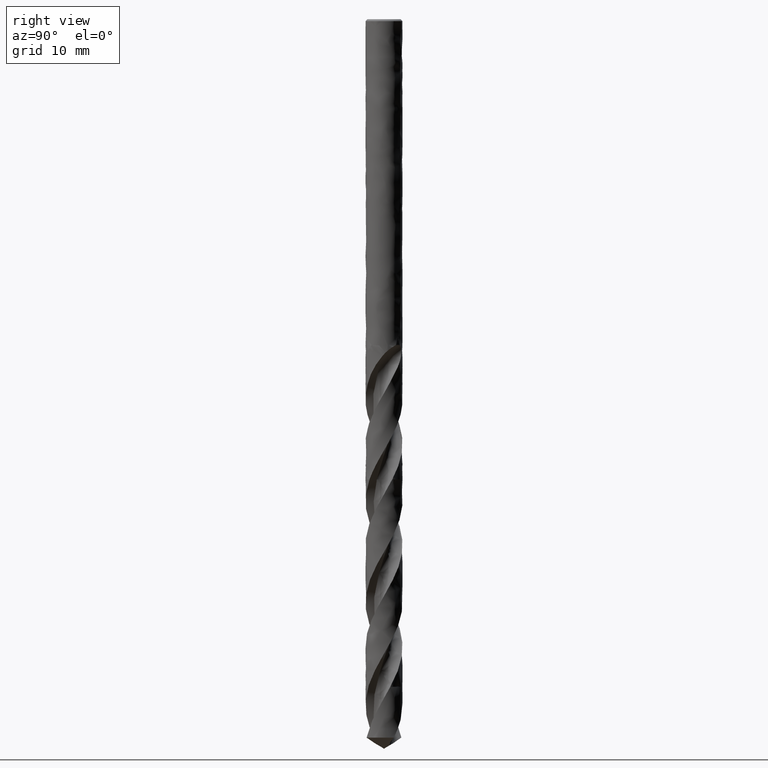
[diagram: clean part render]
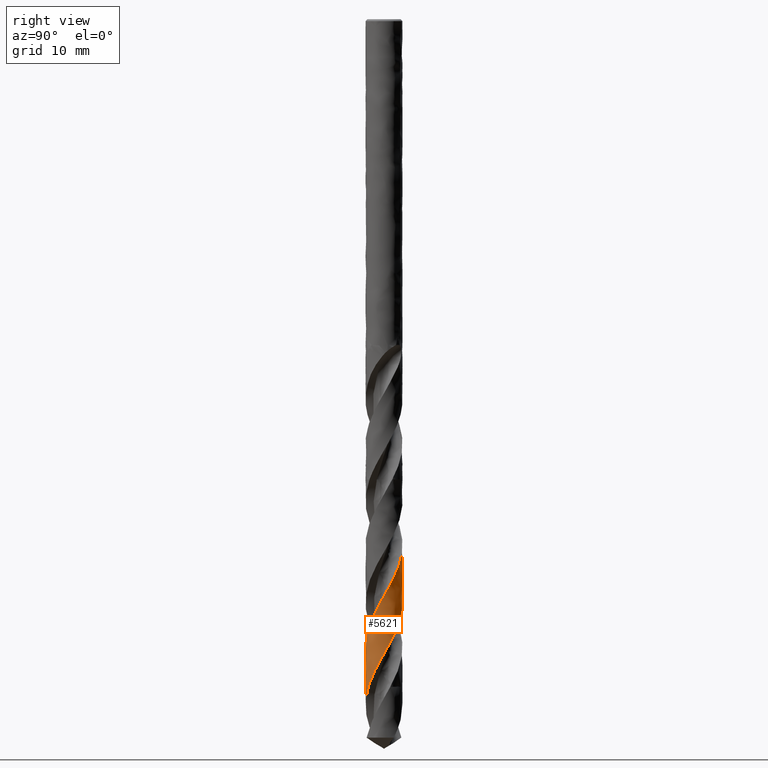
[diagram: same view with one face highlighted and labeled with its STEP entity id]
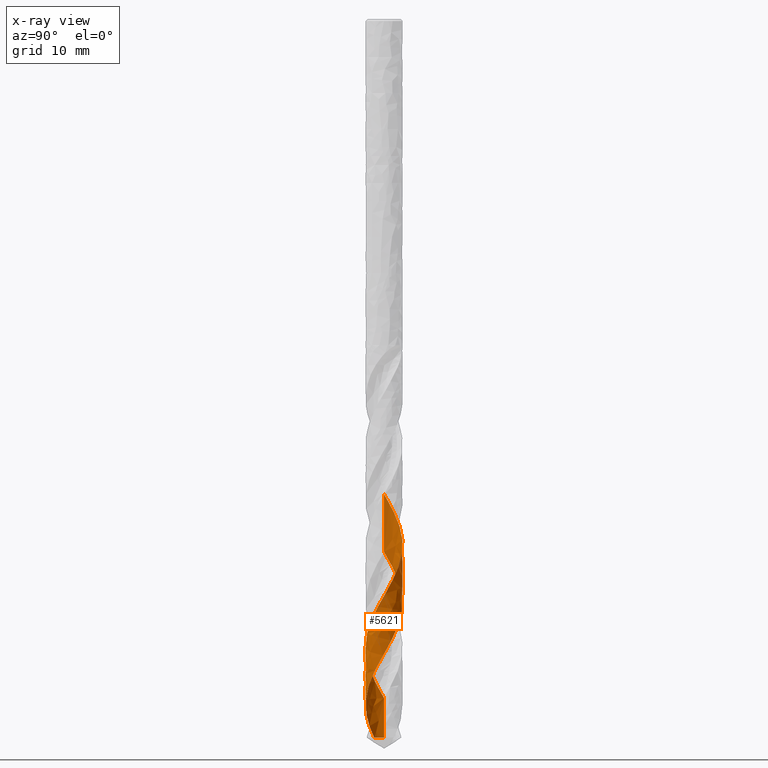
[diagram: x-ray of the same camera — body ghosted, the highlighted face saturated]
A machine part, right view. The second image highlights one B-rep face of the part: STEP entity #5621.
The next image is the same camera in x-ray: the body ghosted, the highlighted face saturated — about 0% of this face is hidden behind the body in this view.
In plain terms, the highlighted face is a freeform B-spline surface patch.
Its self-contained STEP definition (entity closure, byte-faithful):
#3791 = VERTEX_POINT('', #3792);
#3792 = CARTESIAN_POINT('', (-1.65, 3.00697224057047E-15, -47.4575833891705));
#3853 = EDGE_CURVE('', #3791, #3854, #3856, .T.);
#3854 = VERTEX_POINT('', #3855);
#3855 = CARTESIAN_POINT('', (-1.39600309556314, -0.879588174760285, -64.0085799786045));
#3856 = B_SPLINE_CURVE_WITH_KNOTS('', 3, (#3857, #3858, #3859, #3860, #3861, #3862, #3863, #3864, #3865, #3866, #3867, #3868, #3869, #3870, #3871, #3872, #3873, #3874, #3875, #3876, #3877, #3878, #3879, #3880, #3881, #3882, #3883, #3884, #3885, #3886, #3887, #3888, #3889, #3890, #3891, #3892, #3893, #3894, #3895, #3896, #3897, #3898, #3899, #3900, #3901, #3902, #3903, #3904, #3905, #3906, #3907, #3908, #3909, #3910, #3911, #3912, #3913, #3914, #3915, #3916, #3917, #3918, #3919, #3920, #3921, #3922, #3923, #3924, #3925, #3926, #3927, #3928, #3929, #3930, #3931, #3932, #3933, #3934, #3935, #3936, #3937, #3938, #3939, #3940, #3941, #3942, #3943, #3944, #3945, #3946, #3947, #3948, #3949, #3950, #3951, #3952, #3953, #3954, #3955, #3956, #3957, #3958, #3959, #3960, #3961, #3962, #3963, #3964, #3965, #3966, #3967, #3968, #3969, #3970, #3971, #3972, #3973, #3974, #3975, #3976, #3977, #3978, #3979, #3980, #3981, #3982, #3983, #3984, #3985, #3986, #3987, #3988, #3989, #3990, #3991, #3992, #3993, #3994, #3995, #3996, #3997, #3998, #3999, #4000, #4001), .UNSPECIFIED., .F., .U., (4, 3, 3, 3, 3, 3, 3, 3, 3, 3, 3, 3, 3, 3, 3, 3, 3, 3, 3, 3, 3, 3, 3, 3, 3, 3, 3, 3, 3, 3, 3, 3, 3, 3, 3, 3, 3, 3, 3, 3, 3, 3, 3, 3, 3, 3, 3, 3, 4), (0., 0.444743213747883, 0.889196751711456, 1.33337638499462, 1.77729454597297, 2.22096077458209, 2.66438173183502, 3.10756168339397, 3.55050285153552, 3.99320535758461, 4.43566692421908, 4.87788318822549, 5.17285339510933, 5.21176586087952, 5.25069052348937, 5.6954099053216, 6.13984206088526, 6.58400248268508, 7.02790335953559, 7.47155396469042, 7.91496072916321, 8.35812782585768, 8.80105735149503, 9.24374923474932, 9.68620111829109, 10.1284085902191, 10.4233750723504, 10.4817494706769, 10.9264620802882, 11.3708889109303, 11.8150453730289, 12.2589435714927, 12.7025926801035, 13.1459991018853, 13.589167008167, 14.0320984762822, 14.4747934042165, 14.9172494890995, 15.3594623717477, 15.654431805112, 15.7128028368359, 16.1575125883088, 16.6019377619518, 17.0460937421968, 17.4899925969759, 17.9336434407088, 18.3770526805766, 18.8202245253902, 19.0503323922641), .UNSPECIFIED.);
#3857 = CARTESIAN_POINT('', (-1.65, 3.49682579352774E-15, -47.4575833891705));
#3858 = CARTESIAN_POINT('', (-1.65, 0.0736080315943216, -47.5862661365845));
#3859 = CARTESIAN_POINT('', (-1.64506345491559, 0.147252427647406, -47.7150220233346));
#3860 = CARTESIAN_POINT('', (-1.63524135703867, 0.220194696190292, -47.8437090220964));
#3861 = CARTESIAN_POINT('', (-1.62542565661497, 0.293089455050744, -47.9723122028119));
#3862 = CARTESIAN_POINT('', (-1.6107201465807, 0.365362123447376, -48.1009884945236));
#3863 = CARTESIAN_POINT('', (-1.59127352252162, 0.436289555824615, -48.2295960373947));
#3864 = CARTESIAN_POINT('', (-1.57183888289037, 0.507173277545874, -48.3581243229196));
#3865 = CARTESIAN_POINT('', (-1.54764788988653, 0.57679032841513, -48.4867254775275));
#3866 = CARTESIAN_POINT('', (-1.5189439186391, 0.644445010865832, -48.615258171344));
#3867 = CARTESIAN_POINT('', (-1.49025684436972, 0.71205986747936, -48.7437152026647));
#3868 = CARTESIAN_POINT('', (-1.45703089472045, 0.777788266381668, -48.87224486375));
#3869 = CARTESIAN_POINT('', (-1.41959925734566, 0.840974404214388, -49.0007061827139));
#3870 = CARTESIAN_POINT('', (-1.38218886316819, 0.904124682659484, -49.1290945973289));
#3871 = CARTESIAN_POINT('', (-1.34053703796551, 0.964804047954331, -49.2575555850691));
#3872 = CARTESIAN_POINT('', (-1.29506024668613, 1.02240841030054, -49.3859482607216));
#3873 = CARTESIAN_POINT('', (-1.24960859627516, 1.07998092731085, -49.5142699572378));
#3874 = CARTESIAN_POINT('', (-1.20028723798785, 1.13454390426692, -49.6426641524122));
#3875 = CARTESIAN_POINT('', (-1.14758832112744, 1.18555516329351, -49.7709902240074));
#3876 = CARTESIAN_POINT('', (-1.0949180468894, 1.23653869696414, -49.8992465485294));
#3877 = CARTESIAN_POINT('', (-1.03881698314433, 1.28402945125474, -50.0275751015336));
#3878 = CARTESIAN_POINT('', (-0.97984423787566, 1.32755612668613, -50.1558358013412));
#3879 = CARTESIAN_POINT('', (-0.920903266863928, 1.37105935013537, -50.2840273948453));
#3880 = CARTESIAN_POINT('', (-0.859029904075764, 1.41064988949565, -50.4122910379975));
#3881 = CARTESIAN_POINT('', (-0.794839574852898, 1.44593570059241, -50.5404868504444));
#3882 = CARTESIAN_POINT('', (-0.730683832160682, 1.48120249926469, -50.6686135894272));
#3883 = CARTESIAN_POINT('', (-0.664144683360756, 1.51220714444164, -50.7968123881859));
#3884 = CARTESIAN_POINT('', (-0.595882514780363, 1.5386435677502, -50.9249434129797));
#3885 = CARTESIAN_POINT('', (-0.527657497665602, 1.56506560312043, -51.0530047028755));
#3886 = CARTESIAN_POINT('', (-0.457638229418795, 1.58695271094083, -51.1811378961374));
#3887 = CARTESIAN_POINT('', (-0.386518720187239, 1.60408954829368, -51.3092035632593));
#3888 = CARTESIAN_POINT('', (-0.315438639922708, 1.62121688490893, -51.4371982302152));
#3889 = CARTESIAN_POINT('', (-0.243183061580291, 1.63361764638489, -51.5652645174128));
#3890 = CARTESIAN_POINT('', (-0.170467387712276, 1.64117057910729, -51.6932635104569));
#3891 = CARTESIAN_POINT('', (-0.121964066802679, 1.64620858948603, -51.7786423002758));
#3892 = CARTESIAN_POINT('', (-0.0732269593024553, 1.6490953397637, -51.8640425414262));
#3893 = CARTESIAN_POINT('', (-0.0244714036330473, 1.6498185204453, -51.9494232432262));
#3894 = CARTESIAN_POINT('', (-0.0180395713773933, 1.6499139224312, -51.9606866642724));
#3895 = CARTESIAN_POINT('', (-0.0116071849730388, 1.6499717118976, -51.9719501502684));
#3896 = CARTESIAN_POINT('', (-0.00517473611389063, 1.64999188546676, -51.9832136051588));
#3897 = CARTESIAN_POINT('', (0.00125972895126766, 1.65001206535918, -51.9944805905003));
#3898 = CARTESIAN_POINT('', (0.00769431063284062, 1.64999460594451, -52.005747639523));
#3899 = CARTESIAN_POINT('', (0.0141285181566921, 1.64993950948958, -52.0170146552995));
#3900 = CARTESIAN_POINT('', (0.0876401840449264, 1.64931002525682, -52.14574179011));
#3901 = CARTESIAN_POINT('', (0.161145743640215, 1.64375646486488, -52.2745417643288));
#3902 = CARTESIAN_POINT('', (0.233910275945635, 1.63333584507505, -52.40327315145));
#3903 = CARTESIAN_POINT('', (0.306627812581533, 1.62292195554224, -52.531921396173));
#3904 = CARTESIAN_POINT('', (0.378683742354501, 1.60763608513787, -52.66064243857));
#3905 = CARTESIAN_POINT('', (0.449359115466277, 1.5876323205791, -52.7892950760823));
#3906 = CARTESIAN_POINT('', (0.519991276391658, 1.56764078667953, -52.9178690530725));
#3907 = CARTESIAN_POINT('', (0.589320907354425, 1.54291551851354, -53.0465155389618));
#3908 = CARTESIAN_POINT('', (0.656657008557392, 1.51370458581355, -53.1750939276174));
#3909 = CARTESIAN_POINT('', (0.723953761938907, 1.48451072250937, -53.3035971815476));
#3910 = CARTESIAN_POINT('', (0.789332286968546, 1.45080480601489, -53.4321727327137));
#3911 = CARTESIAN_POINT('', (0.852142134540185, 1.41292384173436, -53.5606802287369));
#3912 = CARTESIAN_POINT('', (0.914916569865808, 1.37506423477404, -53.6891152721235));
#3913 = CARTESIAN_POINT('', (0.975192810395508, 1.33299357089037, -53.8176226186852));
#3914 = CARTESIAN_POINT('', (1.03237257468052, 1.28713125478621, -53.9460619524473));
#3915 = CARTESIAN_POINT('', (1.08952091163835, 1.24129414567673, -54.0744306929668));
#3916 = CARTESIAN_POINT('', (1.14363744849953, 1.19162042137375, -54.2028716034154));
#3917 = CARTESIAN_POINT('', (1.19418590191609, 1.13860442281982, -54.3312447481368));
#3918 = CARTESIAN_POINT('', (1.24470703316145, 1.08561708018097, -54.4595485053142));
#3919 = CARTESIAN_POINT('', (1.2917183339893, 1.02923402085426, -54.587924134587));
#3920 = CARTESIAN_POINT('', (1.33475450358199, 0.970015677794742, -54.7162322529589));
#3921 = CARTESIAN_POINT('', (1.37776760253523, 0.910829080242653, -54.8444715884822));
#3922 = CARTESIAN_POINT('', (1.41685622068822, 0.848746460682923, -54.9727826586737));
#3923 = CARTESIAN_POINT('', (1.4516343995005, 0.784383560630148, -55.1010261870177));
#3924 = CARTESIAN_POINT('', (1.48639391898028, 0.720055192827007, -55.2292009096128));
#3925 = CARTESIAN_POINT('', (1.51688477269003, 0.653380318862251, -55.3574474133807));
#3926 = CARTESIAN_POINT('', (1.54280686582217, 0.585018781554929, -55.4856264597013));
#3927 = CARTESIAN_POINT('', (1.56871490562481, 0.516694305576086, -55.6137360154));
#3928 = CARTESIAN_POINT('', (1.59008677863765, 0.446612101874249, -55.7419171318824));
#3929 = CARTESIAN_POINT('', (1.60671280114976, 0.375465011181724, -55.8700310876677));
#3930 = CARTESIAN_POINT('', (1.62332963940219, 0.304357222333987, -55.9980742729581));
#3931 = CARTESIAN_POINT('', (1.63522369499734, 0.232109468343887, -56.126188737875));
#3932 = CARTESIAN_POINT('', (1.64227903863579, 0.159435125547525, -56.2542362145112));
#3933 = CARTESIAN_POINT('', (1.64698517777945, 0.110959021915929, -56.3396479638074));
#3934 = CARTESIAN_POINT('', (1.64954385172771, 0.0622642009589357, -56.4250810806396));
#3935 = CARTESIAN_POINT('', (1.64994423674609, 0.0135652360265045, -56.5104947668563));
#3936 = CARTESIAN_POINT('', (1.6500234736627, 0.0039276231136156, -56.5273982892691));
#3937 = CARTESIAN_POINT('', (1.65001826515114, -0.00571070734889779, -56.5443020093254));
#3938 = CARTESIAN_POINT('', (1.64992861530699, -0.0153481070875403, -56.5612056012601));
#3939 = CARTESIAN_POINT('', (1.64924563754122, -0.0887685330020093, -56.6899819260969));
#3940 = CARTESIAN_POINT('', (1.64365077848683, -0.162179067356949, -56.8188307758473));
#3941 = CARTESIAN_POINT('', (1.63320131200117, -0.23484776873042, -56.9476113478659));
#3942 = CARTESIAN_POINT('', (1.62275856049884, -0.307469772110359, -57.0763091635643));
#3943 = CARTESIAN_POINT('', (1.60745626409159, -0.379428820217986, -57.2050794774585));
#3944 = CARTESIAN_POINT('', (1.58744825842438, -0.450008918606503, -57.3337817059554));
#3945 = CARTESIAN_POINT('', (1.5674524246941, -0.520546079356948, -57.4624056380228));
#3946 = CARTESIAN_POINT('', (1.54273509190303, -0.589781842214484, -57.5911017560396));
#3947 = CARTESIAN_POINT('', (1.51354360407966, -0.657027973947863, -57.7197301165179));
#3948 = CARTESIAN_POINT('', (1.48436909022919, -0.724235004076551, -57.8482836834701));
#3949 = CARTESIAN_POINT('', (1.45069414850129, -0.789527286703888, -57.9769092244894));
#3950 = CARTESIAN_POINT('', (1.41285456815298, -0.852256985450594, -58.1054670238929));
#3951 = CARTESIAN_POINT('', (1.37503622117652, -0.914951483938555, -58.2339526841361));
#3952 = CARTESIAN_POINT('', (1.33301745937198, -0.975153411223755, -58.3625103534809));
#3953 = CARTESIAN_POINT('', (1.28721601188818, -1.03226689317186, -58.4910003141197));
#3954 = CARTESIAN_POINT('', (1.24143961890768, -1.0893491326593, -58.6194199876317));
#3955 = CARTESIAN_POINT('', (1.19183587607261, -1.14340717472895, -58.7479115288581));
#3956 = CARTESIAN_POINT('', (1.1388971062896, -1.19390677244296, -58.8763356311471));
#3957 = CARTESIAN_POINT('', (1.08598681312879, -1.24437920560495, -59.0046906520302));
#3958 = CARTESIAN_POINT('', (1.02968835286578, -1.29135112936659, -59.1331172211636));
#3959 = CARTESIAN_POINT('', (0.97055985958849, -1.33435885688804, -59.2614766137835));
#3960 = CARTESIAN_POINT('', (0.911462912441541, -1.37734363900192, -59.3897675243248));
#3961 = CARTESIAN_POINT('', (0.84947554850424, -1.41641461419181, -59.5181298569932));
#3962 = CARTESIAN_POINT('', (0.785210901561984, -1.45118704516965, -59.6464249526915));
#3963 = CARTESIAN_POINT('', (0.720980574085173, -1.48594090650927, -59.7746515345286));
#3964 = CARTESIAN_POINT('', (0.654407214090038, -1.5164377500519, -59.90294961187));
#3965 = CARTESIAN_POINT('', (0.586147845032974, -1.5423782622182, -60.0311805383265));
#3966 = CARTESIAN_POINT('', (0.517925303314468, -1.56830477894274, -60.1593422815514));
#3967 = CARTESIAN_POINT('', (0.447946153014484, -1.58970739731563, -60.2875752784797));
#3968 = CARTESIAN_POINT('', (0.376900396328686, -1.60637669655889, -60.4157414472378));
#3969 = CARTESIAN_POINT('', (0.305893690946252, -1.62303683328644, -60.5438371676514));
#3970 = CARTESIAN_POINT('', (0.233745717956781, -1.63498665189466, -60.6720038492659));
#3971 = CARTESIAN_POINT('', (0.161166997395469, -1.64210998381696, -60.8001038626045));
#3972 = CARTESIAN_POINT('', (0.112754784820233, -1.64686146271599, -60.8855504649788));
#3973 = CARTESIAN_POINT('', (0.0641221656122172, -1.64947092531122, -60.9710183372879));
#3974 = CARTESIAN_POINT('', (0.0154829094404656, -1.64992735582975, -61.05646689003));
#3975 = CARTESIAN_POINT('', (0.00585776444613439, -1.65001767813865, -61.0733761681405));
#3976 = CARTESIAN_POINT('', (-0.00376819385438676, -1.65002377255281, -61.0902856429682));
#3977 = CARTESIAN_POINT('', (-0.0133933260527614, -1.64994564117041, -61.1071949890866));
#3978 = CARTESIAN_POINT('', (-0.0867240522952104, -1.64935038378632, -61.2360217527706));
#3979 = CARTESIAN_POINT('', (-0.160050528570457, -1.6438553714105, -61.3649207389774));
#3980 = CARTESIAN_POINT('', (-0.232643684992682, -1.63351673264556, -61.4937517561007));
#3981 = CARTESIAN_POINT('', (-0.305190387738449, -1.62318470976293, -61.6225003319213));
#3982 = CARTESIAN_POINT('', (-0.377082116061619, -1.60800426259141, -61.7513211097008));
#3983 = CARTESIAN_POINT('', (-0.447605512476321, -1.58812760986037, -61.880074128253));
#3984 = CARTESIAN_POINT('', (-0.518086192065214, -1.56826299664466, -62.008749159633));
#3985 = CARTESIAN_POINT('', (-0.587275665571235, -1.54368658622345, -62.1374960542236));
#3986 = CARTESIAN_POINT('', (-0.654487969800671, -1.51464368660972, -62.2661755354798));
#3987 = CARTESIAN_POINT('', (-0.721661364287133, -1.48561760016395, -62.3947805231503));
#3988 = CARTESIAN_POINT('', (-0.786932111347894, -1.45209901306578, -62.5234571673064));
#3989 = CARTESIAN_POINT('', (-0.849654343638971, -1.41442125844301, -62.6520663810429));
#3990 = CARTESIAN_POINT('', (-0.912341532346838, -1.37676455478544, -62.7806037394337));
#3991 = CARTESIAN_POINT('', (-0.972549805229622, -1.33491328407658, -62.9092128224005));
#3992 = CARTESIAN_POINT('', (-1.02968489718198, -1.28928236337714, -63.0377545035948));
#3993 = CARTESIAN_POINT('', (-1.08678887444302, -1.24367629241476, -63.1662261834188));
#3994 = CARTESIAN_POINT('', (-1.14088358209395, -1.19424632449286, -63.2947694300673));
#3995 = CARTESIAN_POINT('', (-1.19143585340661, -1.14148175947636, -63.4232455717755));
#3996 = CARTESIAN_POINT('', (-1.2419610597461, -1.08874544386389, -63.5516529291691));
#3997 = CARTESIAN_POINT('', (-1.28900155996624, -1.03262179313185, -63.6801315118303));
#3998 = CARTESIAN_POINT('', (-1.33209420647625, -0.973665766612136, -63.8085432544655));
#3999 = CARTESIAN_POINT('', (-1.35446917700386, -0.943054062234765, -63.8752184111234));
#4000 = CARTESIAN_POINT('', (-1.37579110478264, -0.911666825322816, -63.9419036869175));
#4001 = CARTESIAN_POINT('', (-1.39600309556314, -0.879588174760285, -64.0085799786045));
#4194 = VERTEX_POINT('', #4195);
#4195 = CARTESIAN_POINT('', (-1.65, 2.69284567518659E-15, -42.3275072626891));
#4211 = EDGE_CURVE('', #4194, #3791, #4212, .T.);
#4212 = LINE('', #4213, #4214);
#4213 = CARTESIAN_POINT('', (-1.65, 2.69284567518659E-15, -42.3275072626891));
#4214 = VECTOR('', #4215, 5.13007612648142);
#4215 = DIRECTION('', (0., 3.14126565383886E-16, -5.13007612648142));
#4319 = VERTEX_POINT('', #4320);
#4320 = CARTESIAN_POINT('', (-1.65, 3.80482974636776E-15, -60.4875852860895));
#4351 = EDGE_CURVE('', #4319, #4194, #4352, .T.);
#4352 = B_SPLINE_CURVE_WITH_KNOTS('', 3, (#4353, #4354, #4355, #4356, #4357, #4358, #4359, #4360, #4361, #4362, #4363, #4364, #4365, #4366, #4367, #4368, #4369, #4370, #4371, #4372, #4373, #4374, #4375, #4376, #4377, #4378, #4379, #4380, #4381, #4382, #4383, #4384, #4385, #4386, #4387, #4388, #4389, #4390, #4391, #4392, #4393, #4394, #4395, #4396, #4397, #4398, #4399, #4400, #4401, #4402, #4403, #4404, #4405, #4406, #4407, #4408, #4409, #4410, #4411, #4412, #4413, #4414, #4415, #4416, #4417, #4418, #4419, #4420, #4421, #4422, #4423, #4424, #4425, #4426, #4427, #4428, #4429, #4430, #4431, #4432, #4433, #4434, #4435, #4436, #4437, #4438, #4439, #4440, #4441, #4442, #4443, #4444, #4445, #4446, #4447, #4448, #4449, #4450, #4451, #4452, #4453, #4454, #4455, #4456, #4457, #4458, #4459, #4460, #4461, #4462, #4463, #4464, #4465, #4466, #4467, #4468, #4469, #4470, #4471, #4472, #4473, #4474, #4475, #4476, #4477, #4478, #4479, #4480, #4481, #4482, #4483, #4484, #4485, #4486, #4487, #4488, #4489, #4490, #4491, #4492, #4493, #4494, #4495, #4496, #4497, #4498, #4499, #4500, #4501, #4502, #4503, #4504, #4505, #4506, #4507, #4508, #4509, #4510, #4511, #4512), .UNSPECIFIED., .F., .U., (4, 3, 3, 3, 3, 3, 3, 3, 3, 3, 3, 3, 3, 3, 3, 3, 3, 3, 3, 3, 3, 3, 3, 3, 3, 3, 3, 3, 3, 3, 3, 3, 3, 3, 3, 3, 3, 3, 3, 3, 3, 3, 3, 3, 3, 3, 3, 3, 3, 3, 3, 3, 3, 4), (0., 0.444720938112494, 0.889159612355775, 1.33333085818478, 1.77724635562265, 2.22091495044938, 2.66434254044739, 3.10753293740957, 3.55048801716454, 3.99320739179227, 4.43568836001855, 4.87792631064445, 5.17290707118102, 5.2312675347701, 5.27019039463339, 5.71490228758701, 6.15933034185109, 6.60348946874802, 7.04739135412724, 7.49104454329521, 7.93445494213587, 8.37762635568237, 8.82056052271045, 9.26325670940672, 9.70571218013612, 10.1479221780421, 10.4428891471888, 10.4818019972544, 10.9265359285455, 11.370982779668, 11.8151577819925, 12.259072839261, 12.702736790417, 13.1461557000948, 13.5893334709615, 14.0322719125957, 14.4749704346198, 14.9174263200404, 15.359634787996, 15.654600402718, 15.6935127744709, 15.7324438157701, 16.177166481806, 16.6216007295737, 17.065761746233, 17.5096613348665, 17.9533081593428, 18.3967082387337, 18.8398653701622, 19.2827811665835, 19.7254548440857, 20.1678835358549, 20.610062220818, 20.9073422891546), .UNSPECIFIED.);
#4353 = CARTESIAN_POINT('', (-1.65, 3.79886748145204E-15, -60.4875852860895));
#4354 = CARTESIAN_POINT('', (-1.65, -0.0731751122860414, -60.3586644062734));
#4355 = CARTESIAN_POINT('', (-1.64512148198795, -0.146396447051528, -60.2296780725039));
#4356 = CARTESIAN_POINT('', (-1.63541006680504, -0.218938149696975, -60.100765000618));
#4357 = CARTESIAN_POINT('', (-1.6257048154462, -0.291433810206977, -59.9719337497108));
#4358 = CARTESIAN_POINT('', (-1.61116243316884, -0.363328331742317, -59.8430370317372));
#4359 = CARTESIAN_POINT('', (-1.59192407398609, -0.433909832412122, -59.7142137372359));
#4360 = CARTESIAN_POINT('', (-1.57269729094239, -0.504448862658231, -59.585467958512));
#4361 = CARTESIAN_POINT('', (-1.54875986703752, -0.57375107881199, -59.4566565195331));
#4362 = CARTESIAN_POINT('', (-1.52034567816891, -0.641131046567923, -59.3279185168702));
#4363 = CARTESIAN_POINT('', (-1.49194784984403, -0.708472217759445, -59.1992546399806));
#4364 = CARTESIAN_POINT('', (-1.45904834108743, -0.773964567631147, -59.0705252777525));
#4365 = CARTESIAN_POINT('', (-1.42196986092996, -0.836959804654258, -58.941868954049));
#4366 = CARTESIAN_POINT('', (-1.38491200355683, -0.899920004179017, -58.8132841880687));
#4367 = CARTESIAN_POINT('', (-1.34364008929168, -0.960453330026157, -58.6846342741062));
#4368 = CARTESIAN_POINT('', (-1.29855960717299, -1.01796018911288, -58.55605735219));
#4369 = CARTESIAN_POINT('', (-1.25350361318351, -1.07543580994906, -58.427550274431));
#4370 = CARTESIAN_POINT('', (-1.20459524238847, -1.1299494733205, -58.2989778648844));
#4371 = CARTESIAN_POINT('', (-1.15231472398953, -1.18096180161635, -58.1704786494128));
#4372 = CARTESIAN_POINT('', (-1.10006217086644, -1.23194684300157, -58.04204816922));
#4373 = CARTESIAN_POINT('', (-1.04438597644663, -1.27948805759557, -57.9135522754158));
#4374 = CARTESIAN_POINT('', (-0.985833019721829, -1.32311498261721, -57.7851294010225));
#4375 = CARTESIAN_POINT('', (-0.92731115238512, -1.36671874340464, -57.6567747142803));
#4376 = CARTESIAN_POINT('', (-0.865853408910408, -1.4064586446184, -57.5283548875717));
#4377 = CARTESIAN_POINT('', (-0.802064173592229, -1.44194072743641, -57.4000077887478));
#4378 = CARTESIAN_POINT('', (-0.738308881783254, -1.4774039295389, -57.2717289859446));
#4379 = CARTESIAN_POINT('', (-0.672156382645088, -1.50865177611505, -57.1433852115336));
#4380 = CARTESIAN_POINT('', (-0.604257139376796, -1.53537399662506, -57.0151142371074));
#4381 = CARTESIAN_POINT('', (-0.536394460160536, -1.56208182709751, -56.8869123371856));
#4382 = CARTESIAN_POINT('', (-0.466715049913756, -1.58429722630686, -56.7586452464313));
#4383 = CARTESIAN_POINT('', (-0.395903185657327, -1.60179919702426, -56.6304510988112));
#4384 = CARTESIAN_POINT('', (-0.325130212405404, -1.61929155538038, -56.5023273574603));
#4385 = CARTESIAN_POINT('', (-0.253151456867187, -1.63209406939279, -56.3741384823567));
#4386 = CARTESIAN_POINT('', (-0.180674126772115, -1.64007830908013, -56.2460222149258));
#4387 = CARTESIAN_POINT('', (-0.132330428718056, -1.64540394224197, -56.1605663331988));
#4388 = CARTESIAN_POINT('', (-0.0837364347198854, -1.64859160592627, -56.0750917744907));
#4389 = CARTESIAN_POINT('', (-0.0351051423326657, -1.64962651196633, -55.9896393924168));
#4390 = CARTESIAN_POINT('', (-0.0254836851112142, -1.64983126293436, -55.9727330673279));
#4391 = CARTESIAN_POINT('', (-0.0158602466947201, -1.64995183892729, -55.955826640654));
#4392 = CARTESIAN_POINT('', (-0.00623648019564423, -1.64998821399268, -55.9389204292138));
#4393 = CARTESIAN_POINT('', (0.000181983465613674, -1.65001247393658, -55.9276450201742));
#4394 = CARTESIAN_POINT('', (0.00660066247129667, -1.64999928175593, -55.9163695909346));
#4395 = CARTESIAN_POINT('', (0.0130190715590406, -1.64994863670835, -55.9050942384705));
#4396 = CARTESIAN_POINT('', (0.0863523997159671, -1.64936999333382, -55.7762680588012));
#4397 = CARTESIAN_POINT('', (0.159693660739129, -1.64389113665215, -55.6473758414253));
#4398 = CARTESIAN_POINT('', (0.232312406169454, -1.6335638787448, -55.518557512096));
#4399 = CARTESIAN_POINT('', (0.304884802469331, -1.62324321224055, -55.389821401449));
#4400 = CARTESIAN_POINT('', (0.376813580349393, -1.6080692808043, -55.2610190843441));
#4401 = CARTESIAN_POINT('', (0.447383456963548, -1.58819017829594, -55.1322908091111));
#4402 = CARTESIAN_POINT('', (0.517910631117908, -1.56832310480927, -55.003640428502));
#4403 = CARTESIAN_POINT('', (0.587155726405762, -1.54373536704812, -54.8749238325094));
#4404 = CARTESIAN_POINT('', (0.654430209860174, -1.51466864377081, -54.7462810215644));
#4405 = CARTESIAN_POINT('', (0.721665730273689, -1.48561875492864, -54.617712716061));
#4406 = CARTESIAN_POINT('', (0.787005208912199, -1.45206379899932, -54.4890785010067));
#4407 = CARTESIAN_POINT('', (0.849798437526112, -1.41433469008514, -54.3605178335854));
#4408 = CARTESIAN_POINT('', (0.912556486208236, -1.37662671891953, -54.2320291923301));
#4409 = CARTESIAN_POINT('', (0.972838874033103, -1.33470858255757, -54.1034747286926));
#4410 = CARTESIAN_POINT('', (1.03004592762177, -1.28899394373667, -53.9749939149008));
#4411 = CARTESIAN_POINT('', (1.08722167450601, -1.24330432236722, -53.8465834125585));
#4412 = CARTESIAN_POINT('', (1.14138656178467, -1.19377355760344, -53.7181068938044));
#4413 = CARTESIAN_POINT('', (1.19200225729119, -1.14089027457189, -53.5897041119472));
#4414 = CARTESIAN_POINT('', (1.2425906724116, -1.08803549409008, -53.4613705354508));
#4415 = CARTESIAN_POINT('', (1.28968759358973, -1.03177548191025, -53.3329710462463));
#4416 = CARTESIAN_POINT('', (1.33282447033466, -0.972665888821603, -53.2046449448868));
#4417 = CARTESIAN_POINT('', (1.37593825426831, -0.913587939346994, -53.0763875413717));
#4418 = CARTESIAN_POINT('', (1.41514269395441, -0.851599748696491, -52.9480645554036));
#4419 = CARTESIAN_POINT('', (1.45004712335673, -0.787314003460442, -52.8198148466195));
#4420 = CARTESIAN_POINT('', (1.484932799255, -0.723062797765754, -52.6916340440309));
#4421 = CARTESIAN_POINT('', (1.51556061932896, -0.656447431449965, -52.56338757342));
#4422 = CARTESIAN_POINT('', (1.54162517216648, -0.588125691109425, -52.435214546419));
#4423 = CARTESIAN_POINT('', (1.56767555240838, -0.519841100702132, -52.3071112134769));
#4424 = CARTESIAN_POINT('', (1.58919537258828, -0.449779305870007, -52.1789420780941));
#4425 = CARTESIAN_POINT('', (1.60596950506583, -0.378631679604249, -52.0508463511354));
#4426 = CARTESIAN_POINT('', (1.62273433131048, -0.307523525804883, -51.9228216912599));
#4427 = CARTESIAN_POINT('', (1.63477657957134, -0.23525491288898, -51.794731420488));
#4428 = CARTESIAN_POINT('', (1.64197469523486, -0.162539534293633, -51.6667142211801));
#4429 = CARTESIAN_POINT('', (1.64677604837226, -0.114036255452832, -51.5813230146101));
#4430 = CARTESIAN_POINT('', (1.64942761455526, -0.0653050657010025, -51.4959130997409));
#4431 = CARTESIAN_POINT('', (1.64991688512536, -0.0165611647743426, -51.4105253257537));
#4432 = CARTESIAN_POINT('', (1.64998143103838, -0.0101307359237576, -51.3992607368534));
#4433 = CARTESIAN_POINT('', (1.65000838387057, -0.00369985837742097, -51.3879961259465));
#4434 = CARTESIAN_POINT('', (1.64999773992221, 0.00273097997269871, -51.3767315909233));
#4435 = CARTESIAN_POINT('', (1.64987609051869, 0.0762288609073155, -51.2479895189181));
#4436 = CARTESIAN_POINT('', (1.64483258532855, 0.149765557448665, -51.119180812438));
#4437 = CARTESIAN_POINT('', (1.63491497502355, 0.22260508629353, -50.9904465184518));
#4438 = CARTESIAN_POINT('', (1.62500376663448, 0.295397596499265, -50.8617953237306));
#4439 = CARTESIAN_POINT('', (1.61021401469181, 0.367572876285777, -50.7330773927139));
#4440 = CARTESIAN_POINT('', (1.59069075075348, 0.43840955220856, -50.6044340135358));
#4441 = CARTESIAN_POINT('', (1.57117942834611, 0.509202900419251, -50.4758693199146));
#4442 = CARTESIAN_POINT('', (1.54691939028023, 0.578735472811773, -50.3472378240476));
#4443 = CARTESIAN_POINT('', (1.51815016323972, 0.646312681181008, -50.2186807441827));
#4444 = CARTESIAN_POINT('', (1.48939777284758, 0.713850341261575, -50.090198899928));
#4445 = CARTESIAN_POINT('', (1.45611036477728, 0.779507911152935, -49.9616504898668));
#4446 = CARTESIAN_POINT('', (1.41861772786179, 0.842629065601417, -49.833176205188));
#4447 = CARTESIAN_POINT('', (1.38114629912599, 0.90571451477824, -49.7047745935975));
#4448 = CARTESIAN_POINT('', (1.33943360477409, 0.966335086285558, -49.5763066146383));
#4449 = CARTESIAN_POINT('', (1.29389334577208, 1.02388476390985, -49.4479127863453));
#4450 = CARTESIAN_POINT('', (1.24837823925846, 1.08140265608475, -49.3195898716646));
#4451 = CARTESIAN_POINT('', (1.19899065672175, 1.13591519160075, -49.1912004208133));
#4452 = CARTESIAN_POINT('', (1.14622022835236, 1.18687791626429, -49.0628852391009));
#4453 = CARTESIAN_POINT('', (1.09347849744735, 1.23781292652375, -48.9346398373858));
#4454 = CARTESIAN_POINT('', (1.03730090493555, 1.28525671435533, -48.8063279438874));
#4455 = CARTESIAN_POINT('', (0.978244850113955, 1.32873511778139, -48.6780900425693));
#4456 = CARTESIAN_POINT('', (0.919220687325766, 1.37219004157105, -48.549921393548));
#4457 = CARTESIAN_POINT('', (0.857257122596466, 1.41173098119346, -48.4216865488381));
#4458 = CARTESIAN_POINT('', (0.792969463776664, 1.44696213824612, -48.2935255279207));
#4459 = CARTESIAN_POINT('', (0.728716626657995, 1.48217421218323, -48.165433926));
#4460 = CARTESIAN_POINT('', (0.662072460615385, 1.51311941427883, -48.0372761458874));
#4461 = CARTESIAN_POINT('', (0.593698341410035, 1.53948766783214, -47.9091923032733));
#4462 = CARTESIAN_POINT('', (0.525361697062242, 1.56584146933024, -47.7811786615452));
#4463 = CARTESIAN_POINT('', (0.455223485588314, 1.58765171122047, -47.653098692466));
#4464 = CARTESIAN_POINT('', (0.383979146417075, 1.60469935349838, -47.5250926992024));
#4465 = CARTESIAN_POINT('', (0.31277464645778, 1.62173746288369, -47.3971582857717));
#4466 = CARTESIAN_POINT('', (0.240388750956197, 1.63403657675636, -47.2691576777147));
#4467 = CARTESIAN_POINT('', (0.167539594939271, 1.64147204792759, -47.1412307205797));
#4468 = CARTESIAN_POINT('', (0.118947137662606, 1.64643171849859, -47.0558998047669));
#4469 = CARTESIAN_POINT('', (0.0701192927560502, 1.64923306423664, -46.9705499435276));
#4470 = CARTESIAN_POINT('', (0.0212724020247419, 1.64986286851743, -46.8852224857999));
#4471 = CARTESIAN_POINT('', (0.0148284360970526, 1.64994595338252, -46.8739659406635));
#4472 = CARTESIAN_POINT('', (0.00838391268300883, 1.64999128566455, -46.8627093726934));
#4473 = CARTESIAN_POINT('', (0.00193932554013399, 1.64999886030762, -46.8514528791202));
#4474 = CARTESIAN_POINT('', (-0.00450835361469169, 1.65000643858489, -46.8401909848576));
#4475 = CARTESIAN_POINT('', (-0.0109561520782065, 1.64997622305246, -46.828929070053));
#4476 = CARTESIAN_POINT('', (-0.0174035764949074, 1.6499082142729, -46.8176672327477));
#4477 = CARTESIAN_POINT('', (-0.0910547216985708, 1.64913132660824, -46.6890193943206));
#4478 = CARTESIAN_POINT('', (-0.164701061209938, 1.64341128849137, -46.5603043409834));
#4479 = CARTESIAN_POINT('', (-0.237602119467877, 1.63280287629107, -46.4316643068894));
#4480 = CARTESIAN_POINT('', (-0.310455898829159, 1.62220134401865, -46.3031077003756));
#4481 = CARTESIAN_POINT('', (-0.382644991444615, 1.60670622061901, -46.1744837593394));
#4482 = CARTESIAN_POINT('', (-0.453444544948867, 1.5864703100457, -46.0459349441797));
#4483 = CARTESIAN_POINT('', (-0.524200572013444, 1.56624684018843, -45.9174651587875));
#4484 = CARTESIAN_POINT('', (-0.593645608708613, 1.54126644142942, -45.7889280521157));
#4485 = CARTESIAN_POINT('', (-0.661082470423187, 1.51177708915678, -45.6604658489492));
#4486 = CARTESIAN_POINT('', (-0.728479639582656, 1.48230509397506, -45.5320792571464));
#4487 = CARTESIAN_POINT('', (-0.793944673786981, 1.44829720436161, -45.4036256117218));
#4488 = CARTESIAN_POINT('', (-0.85681996497842, 1.41009203515743, -45.2752466544542));
#4489 = CARTESIAN_POINT('', (-0.919659453883957, 1.37190862064202, -45.1469407984009));
#4490 = CARTESIAN_POINT('', (-0.979981067934343, 1.32949083559701, -45.018567985624));
#4491 = CARTESIAN_POINT('', (-1.03717904092404, 1.28326132843934, -44.8902699273325));
#4492 = CARTESIAN_POINT('', (-1.09434520185525, 1.2370575329583, -44.7620432251594));
#4493 = CARTESIAN_POINT('', (-1.1484534000647, 1.18699600982518, -44.6337494224871));
#4494 = CARTESIAN_POINT('', (-1.19896066742439, 1.13357545755422, -44.5055304365233));
#4495 = CARTESIAN_POINT('', (-1.2494402608204, 1.08018417549526, -44.3773817043616));
#4496 = CARTESIAN_POINT('', (-1.2963776241624, 1.02337959755588, -44.2491659713155));
#4497 = CARTESIAN_POINT('', (-1.33930135156371, 0.963728120218359, -44.1210247570969));
#4498 = CARTESIAN_POINT('', (-1.38220170351346, 0.904109127949213, -43.9929533261643));
#4499 = CARTESIAN_POINT('', (-1.42113976041762, 0.841581021896972, -43.8648151821344));
#4500 = CARTESIAN_POINT('', (-1.45572388260374, 0.776767647123088, -43.7367514448754));
#4501 = CARTESIAN_POINT('', (-1.49028909945763, 0.711989702434027, -43.6087577133688));
#4502 = CARTESIAN_POINT('', (-1.52054294934074, 0.644858174402697, -43.4806972261066));
#4503 = CARTESIAN_POINT('', (-1.54618086203327, 0.576042309107911, -43.3527112668932));
#4504 = CARTESIAN_POINT('', (-1.57180458611881, 0.507264528086175, -43.2247961380356));
#4505 = CARTESIAN_POINT('', (-1.59284527856129, 0.436729702142054, -43.0968141510063));
#4506 = CARTESIAN_POINT('', (-1.60909054219993, 0.365140557871535, -42.9689066671718));
#4507 = CARTESIAN_POINT('', (-1.62532662599433, 0.293591867065367, -42.8410714610672));
#4508 = CARTESIAN_POINT('', (-1.63679029043197, 0.220912406674333, -42.7131695649848));
#4509 = CARTESIAN_POINT('', (-1.64336462014488, 0.147826673019702, -42.5853418715148));
#4510 = CARTESIAN_POINT('', (-1.64778459164686, 0.0986905824885826, -42.4994023480997));
#4511 = CARTESIAN_POINT('', (-1.65, 0.0493405860025421, -42.4134432842313));
#4512 = CARTESIAN_POINT('', (-1.65, 2.8773571401424E-15, -42.3275072626891));
#5575 = EDGE_CURVE('', #3854, #5576, #5578, .T.);
#5576 = VERTEX_POINT('', #5577);
#5577 = CARTESIAN_POINT('', (-1.65, 4.02042849036793E-15, -64.0085799786045));
#5578 = CIRCLE('', #5579, 1.65000000000002);
#5579 = AXIS2_PLACEMENT_3D('', #5580, #5581, #5582);
#5580 = CARTESIAN_POINT('', (2.39993734993015E-31, 3.91939512943827E-15, -64.0085799786045));
#5581 = DIRECTION('', (3.74939945665464E-33, 6.12323399573677E-17, -1.));
#5582 = DIRECTION('', (-1., 6.12323399573677E-17, 0.));
#5621 = ADVANCED_FACE('', (#5622), #5634, .T.);
#5622 = FACE_OUTER_BOUND('', #5623, .T.);
#5623 = EDGE_LOOP('', (#5624, #5625, #5626, #5627, #5633));
#5624 = ORIENTED_EDGE('', *, *, #3853, .F.);
#5625 = ORIENTED_EDGE('', *, *, #4211, .F.);
#5626 = ORIENTED_EDGE('', *, *, #4351, .F.);
#5627 = ORIENTED_EDGE('', *, *, #5628, .T.);
#5628 = EDGE_CURVE('', #4319, #5576, #5629, .T.);
#5629 = LINE('', #5630, #5631);
#5630 = CARTESIAN_POINT('', (-1.65, 3.80482974636776E-15, -60.4875852860895));
#5631 = VECTOR('', #5632, 3.52099469251502);
#5632 = DIRECTION('', (0., 2.15598744000167E-16, -3.52099469251502));
#5633 = ORIENTED_EDGE('', *, *, #5575, .F.);
#5634 = (
   BOUNDED_SURFACE ()
   B_SPLINE_SURFACE (1, 2, ((#5635, #5636, #5637, #5638, #5639, #5640, #5641, #5642, #5643), (#5644, #5645, #5646, #5647, #5648, #5649, #5650, #5651, #5652)), .UNSPECIFIED., .F., .T., .U.)
   B_SPLINE_SURFACE_WITH_KNOTS ((2, 2), (3, 2, 2, 2, 3), (-1.3791160789493, -0.571175974014873), (0., 0.25, 0.5, 0.75, 1.), .UNSPECIFIED.)
   GEOMETRIC_REPRESENTATION_ITEM ()
   RATIONAL_B_SPLINE_SURFACE (((1., 0.707106781186548, 1., 0.707106781186548, 1., 0.707106781186548, 1., 0.707106781186548, 1.), (1., 0.707106781186548, 1., 0.707106781186548, 1., 0.707106781186548, 1., 0.707106781186548, 1.)))
   REPRESENTATION_ITEM ('')
   SURFACE ()
);
#5635 = CARTESIAN_POINT('', (-1.65, 4.02042849036793E-15, -64.0085799786045));
#5636 = CARTESIAN_POINT('', (-1.65, 1.65, -64.0085799786045));
#5637 = CARTESIAN_POINT('', (1.35308431126191E-15, 1.65, -64.0085799786045));
#5638 = CARTESIAN_POINT('', (1.65, 1.65, -64.0085799786045));
#5639 = CARTESIAN_POINT('', (1.65, 1.35589323126755E-15, -64.0085799786045));
#5640 = CARTESIAN_POINT('', (1.65, -1.65, -64.0085799786045));
#5641 = CARTESIAN_POINT('', (-1.10938422597915E-15, -1.65, -64.0085799786045));
#5642 = CARTESIAN_POINT('', (-1.65, -1.65, -64.0085799786045));
#5643 = CARTESIAN_POINT('', (-1.65, 4.02042849036793E-15, -64.0085799786045));
#5644 = CARTESIAN_POINT('', (-1.65, 2.69284567518659E-15, -42.3275072626891));
#5645 = CARTESIAN_POINT('', (-1.65, 1.65, -42.3275072626891));
#5646 = CARTESIAN_POINT('', (1.35308431126191E-15, 1.65, -42.3275072626891));
#5647 = CARTESIAN_POINT('', (1.65, 1.65, -42.3275072626891));
#5648 = CARTESIAN_POINT('', (1.65, 2.83104160862099E-17, -42.3275072626891));
#5649 = CARTESIAN_POINT('', (1.65, -1.65, -42.3275072626891));
#5650 = CARTESIAN_POINT('', (-1.10938422597915E-15, -1.65, -42.3275072626891));
#5651 = CARTESIAN_POINT('', (-1.65, -1.65, -42.3275072626891));
#5652 = CARTESIAN_POINT('', (-1.65, 2.69284567518659E-15, -42.3275072626891));